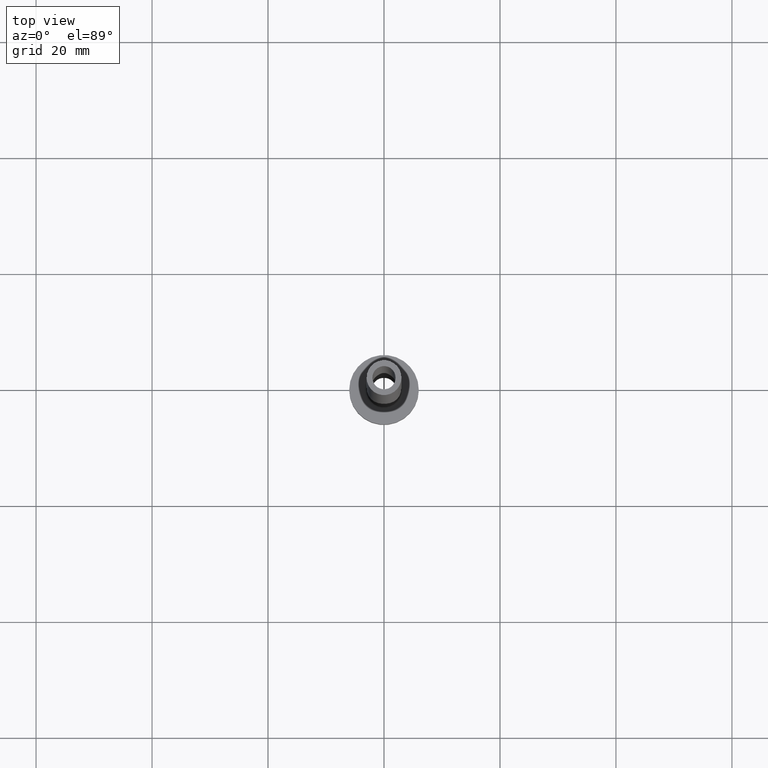
[diagram: clean part render]
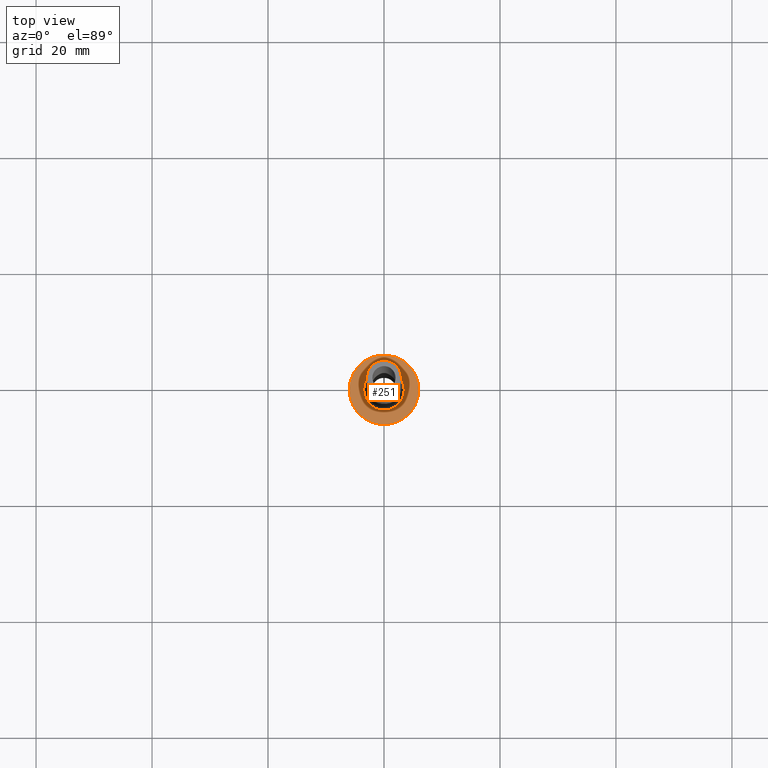
[diagram: same view with one face highlighted and labeled with its STEP entity id]
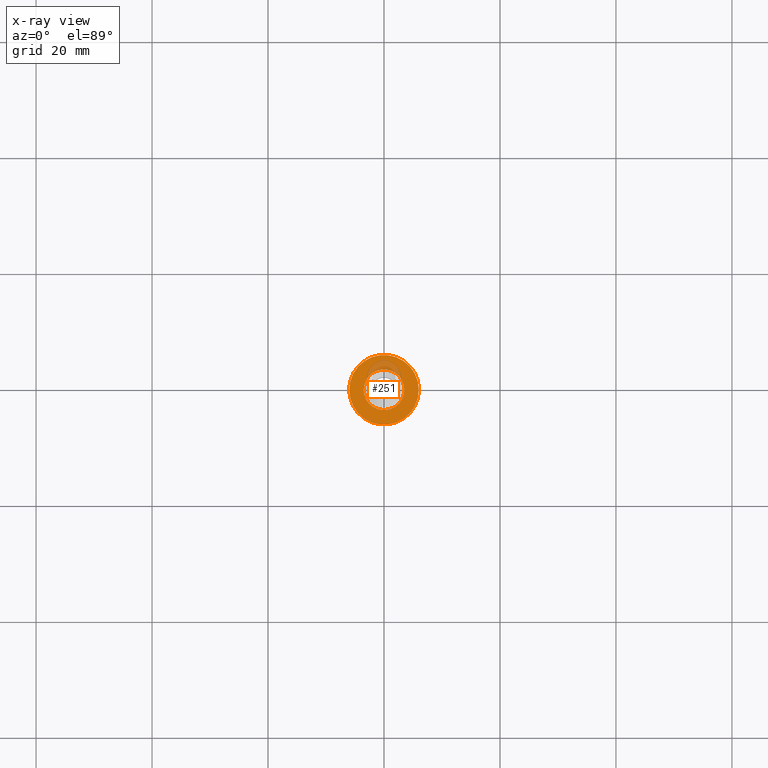
[diagram: x-ray of the same camera — body ghosted, the highlighted face saturated]
A machine part, top view. The second image highlights one B-rep face of the part: STEP entity #251.
The next image is the same camera in x-ray: the body ghosted, the highlighted face saturated — about 12% of this face is hidden behind the body in this view.
In plain terms, the highlighted planar face has unit normal (0, 0, 1).
Its self-contained STEP definition (entity closure, byte-faithful):
#11 = DIRECTION ( 'NONE',  ( 0.000000000000000000, 0.000000000000000000, 1.000000000000000000 ) ) ;
#18 = CARTESIAN_POINT ( 'NONE',  ( 0.000000000000000000, 0.000000000000000000, 5.000000000000000000 ) ) ;
#30 = FACE_OUTER_BOUND ( 'NONE', #227, .T. ) ;
#48 = CARTESIAN_POINT ( 'NONE',  ( 3.500000000000000444, 0.000000000000000000, 5.000000000000002665 ) ) ;
#102 = CIRCLE ( 'NONE', #291, 6.000000000000000888 ) ;
#103 = CARTESIAN_POINT ( 'NONE',  ( -3.500000000000000444, 4.286263797015737088E-16, 5.000000000000002665 ) ) ;
#107 = AXIS2_PLACEMENT_3D ( 'NONE', #392, #210, #393 ) ;
#115 = EDGE_CURVE ( 'NONE', #294, #348, #102, .T. ) ;
#120 = CIRCLE ( 'NONE', #107, 3.500000000000000444 ) ;
#123 = CARTESIAN_POINT ( 'NONE',  ( 0.000000000000000000, 0.000000000000000000, 5.000000000000000000 ) ) ;
#130 = CARTESIAN_POINT ( 'NONE',  ( -6.000000000000000888, 0.000000000000000000, 5.000000000000000000 ) ) ;
#147 = PLANE ( 'NONE',  #354 ) ;
#168 = DIRECTION ( 'NONE',  ( -0.000000000000000000, -0.000000000000000000, -1.000000000000000000 ) ) ;
#175 = CIRCLE ( 'NONE', #289, 3.500000000000000444 ) ;
#179 = VERTEX_POINT ( 'NONE', #103 ) ;
#183 = EDGE_CURVE ( 'NONE', #348, #294, #366, .T. ) ;
#185 = DIRECTION ( 'NONE',  ( 1.000000000000000000, 0.000000000000000000, 0.000000000000000000 ) ) ;
#210 = DIRECTION ( 'NONE',  ( -0.000000000000000000, -0.000000000000000000, -1.000000000000000000 ) ) ;
#212 = EDGE_CURVE ( 'NONE', #179, #434, #120, .T. ) ;
#216 = ORIENTED_EDGE ( 'NONE', *, *, #212, .T. ) ;
#227 = EDGE_LOOP ( 'NONE', ( #295, #418 ) ) ;
#251 = ADVANCED_FACE ( 'NONE', ( #266, #30 ), #147, .T. ) ;
#255 = ORIENTED_EDGE ( 'NONE', *, *, #380, .T. ) ;
#258 = DIRECTION ( 'NONE',  ( 0.000000000000000000, 0.000000000000000000, 1.000000000000000000 ) ) ;
#266 = FACE_BOUND ( 'NONE', #441, .T. ) ;
#289 = AXIS2_PLACEMENT_3D ( 'NONE', #18, #168, #382 ) ;
#291 = AXIS2_PLACEMENT_3D ( 'NONE', #123, #11, #307 ) ;
#294 = VERTEX_POINT ( 'NONE', #130 ) ;
#295 = ORIENTED_EDGE ( 'NONE', *, *, #115, .T. ) ;
#307 = DIRECTION ( 'NONE',  ( 1.000000000000000000, 0.000000000000000000, 0.000000000000000000 ) ) ;
#338 = AXIS2_PLACEMENT_3D ( 'NONE', #432, #363, #185 ) ;
#348 = VERTEX_POINT ( 'NONE', #437 ) ;
#354 = AXIS2_PLACEMENT_3D ( 'NONE', #433, #258, #444 ) ;
#363 = DIRECTION ( 'NONE',  ( 0.000000000000000000, 0.000000000000000000, 1.000000000000000000 ) ) ;
#366 = CIRCLE ( 'NONE', #338, 6.000000000000000888 ) ;
#380 = EDGE_CURVE ( 'NONE', #434, #179, #175, .T. ) ;
#382 = DIRECTION ( 'NONE',  ( 1.000000000000000000, 0.000000000000000000, 0.000000000000000000 ) ) ;
#392 = CARTESIAN_POINT ( 'NONE',  ( 0.000000000000000000, 0.000000000000000000, 5.000000000000000000 ) ) ;
#393 = DIRECTION ( 'NONE',  ( 1.000000000000000000, 0.000000000000000000, 0.000000000000000000 ) ) ;
#418 = ORIENTED_EDGE ( 'NONE', *, *, #183, .T. ) ;
#432 = CARTESIAN_POINT ( 'NONE',  ( 0.000000000000000000, 0.000000000000000000, 5.000000000000000000 ) ) ;
#433 = CARTESIAN_POINT ( 'NONE',  ( 0.000000000000000000, 0.000000000000000000, 5.000000000000000000 ) ) ;
#434 = VERTEX_POINT ( 'NONE', #48 ) ;
#437 = CARTESIAN_POINT ( 'NONE',  ( 6.000000000000000888, 7.347880794884120722E-16, 5.000000000000000000 ) ) ;
#441 = EDGE_LOOP ( 'NONE', ( #255, #216 ) ) ;
#444 = DIRECTION ( 'NONE',  ( 1.000000000000000000, 0.000000000000000000, -0.000000000000000000 ) ) ;